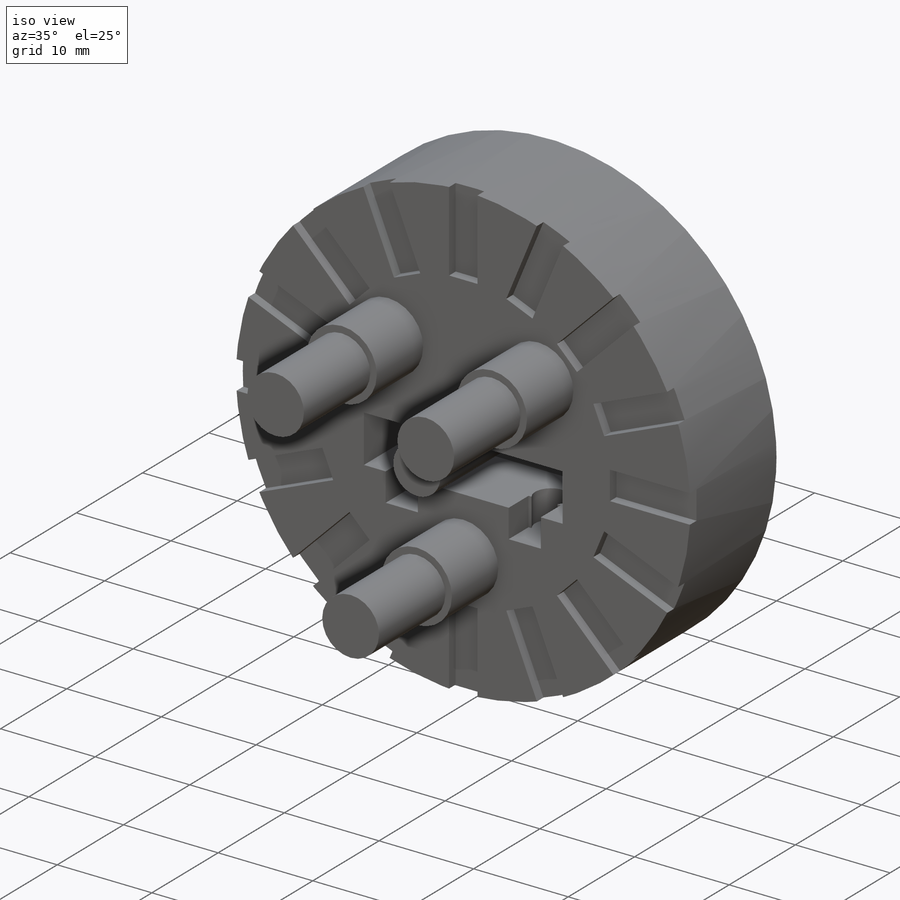
[diagram: iso view]
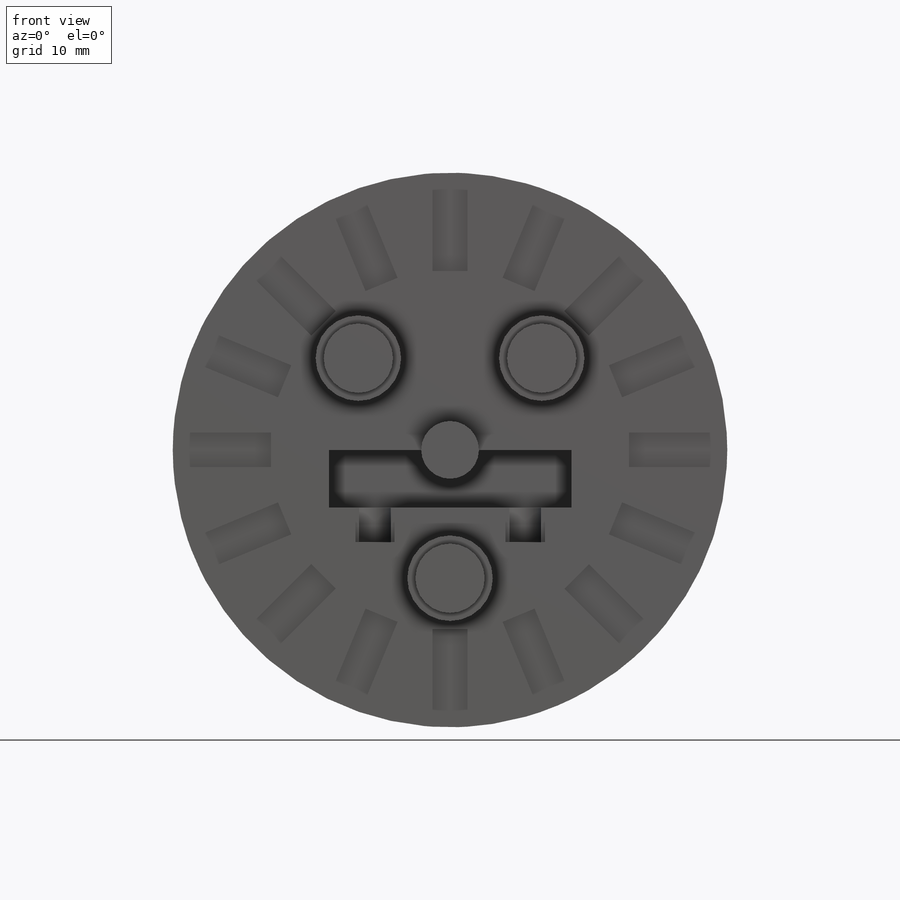
[diagram: front view]
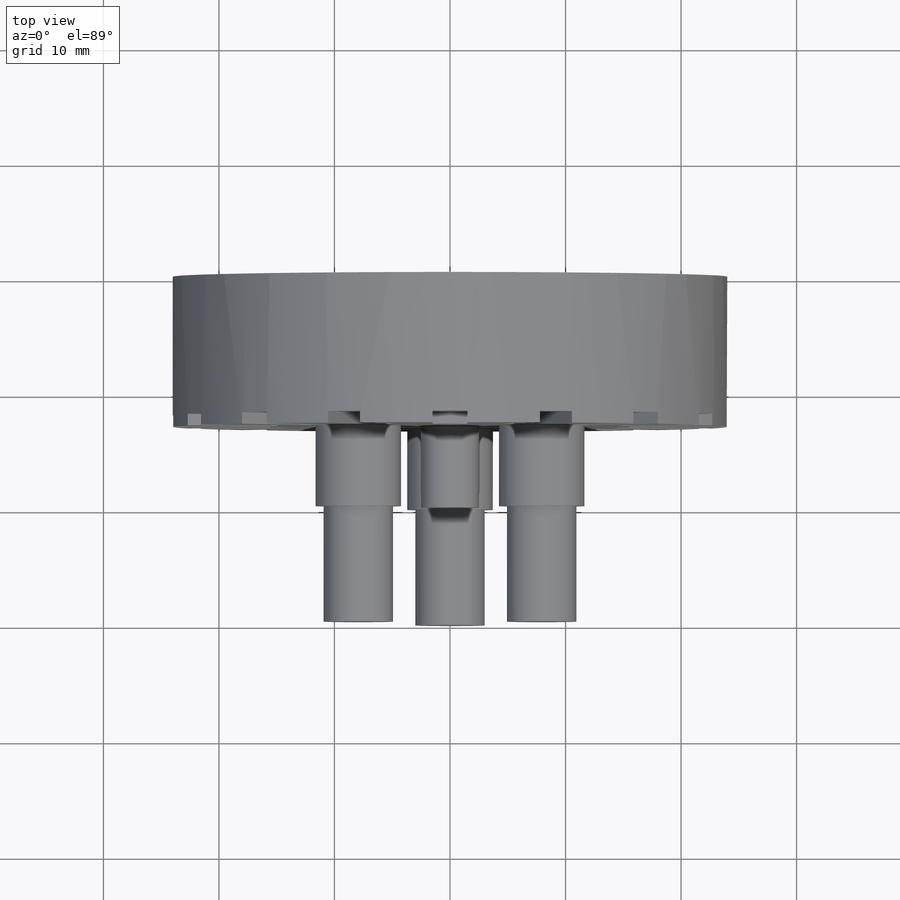
[diagram: top view]
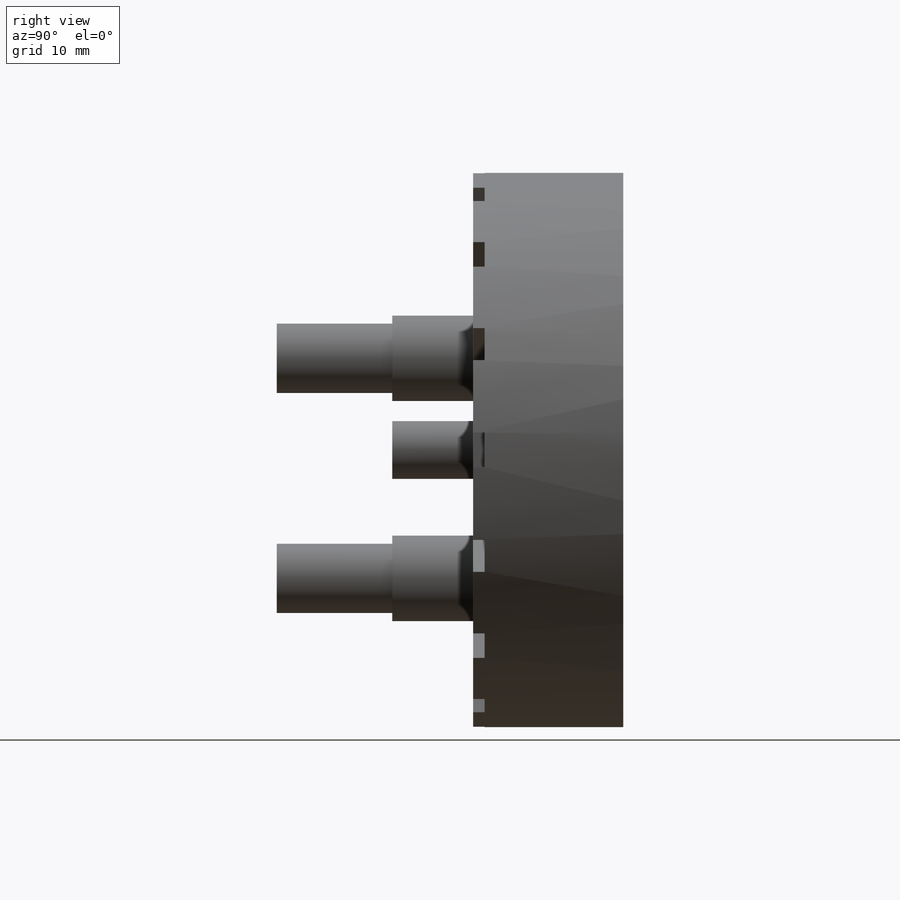
[diagram: right view]
SOLIDWORKS PART (.sldprt)
format: sldprt  version: not decoded by parser v0  size: 399,360 bytes
history: native  units: mm
features: sketch x8, extrude x4, cut_extrude x4, material x1 (+15 scaffold rows collapsed)
feature tree (32):
  scaffold x15  (default folders/planes/origin — collapsed)
  material  "Material <not specified>"
  sketch  "Sketch1"  dims[D1=23.75mm]
  extrude  "Extrude1"  Depth=5mm
  sketch  "Sketch2"  dims[D1=5.0mm]
  extrude  "Extrude2"  Depth=8mm
  sketch  "Sketch3"  dims[D1=3.175mm]
  extrude  "Extrude3"  Depth=7mm
  sketch  "Sketch5"  dims[D1=3.175mm]
  extrude  "Extrude6"  Depth=10mm
  sketch  "Sketch6"
  cut_extrude  "Extrude7"  Depth=3mm
  sketch  "Sketch7"  dims[D1=21.0mm D2=8.0mm]
  cut_extrude  "Extrude8"  Depth=3mm
  sketch  "Sketch8"
  cut_extrude  "Extrude9"  Depth=3mm
  sketch  "Sketch9"  dims[c1.D1=24.0mm c2.D1=22.5deg c3.D1=8.5mm c4.D1=~21.157555deg]
  cut_extrude  "Extrude10"  Depth=1mm
decode coverage: 14 of 16 modeling features carry decoded parameters
note: ~ marks probable driven/reference dimensions
note: suppression state not decoded; provenance and decode notes live in map.json
